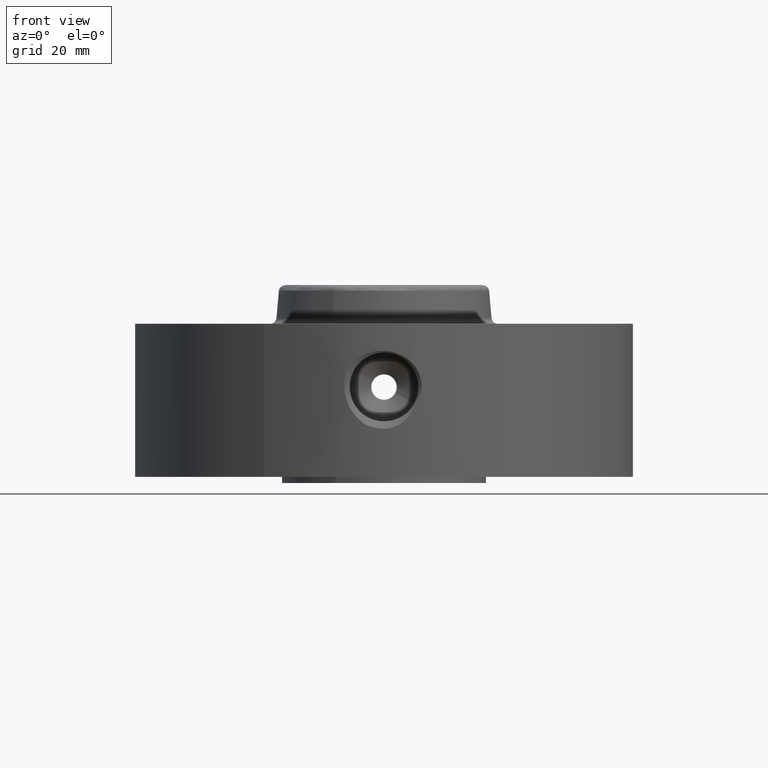
[diagram: clean part render]
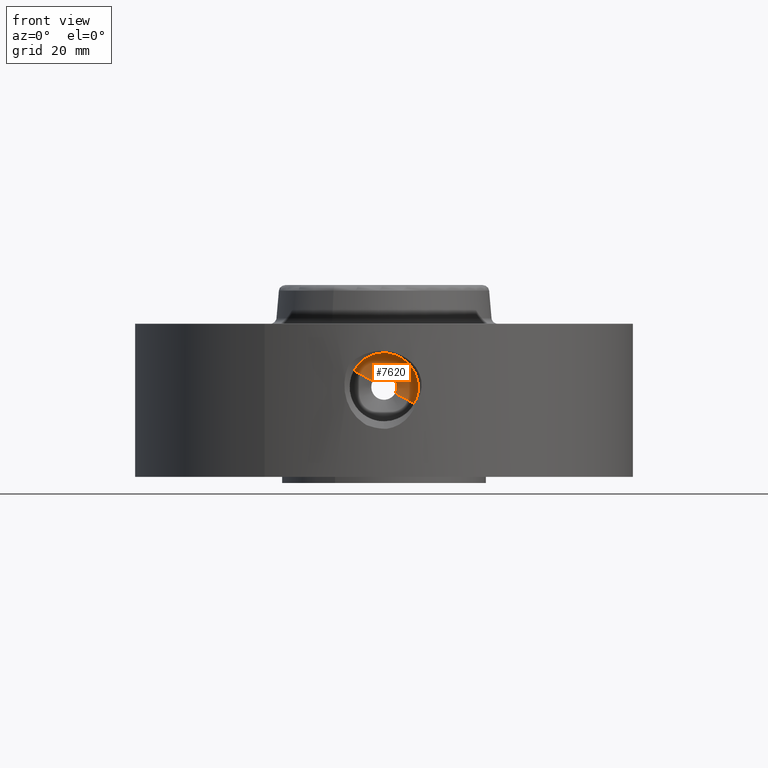
[diagram: same view with one face highlighted and labeled with its STEP entity id]
A machine part, front view. The second image highlights one B-rep face of the part: STEP entity #7620.
In plain terms, the highlighted conical surface has half-angle 60 deg.
Its self-contained STEP definition (entity closure, byte-faithful):
#4073=AXIS2_PLACEMENT_3D('Circle Axis2P3D',#4071,#4072,$) ;
#7593=AXIS2_PLACEMENT_3D('Cone Axis2P3D',#7590,#7591,#7592) ;
#7604=AXIS2_PLACEMENT_3D('Circle Axis2P3D',#7602,#7603,$) ;
#4068=CARTESIAN_POINT('Vertex',(0.109697820237,-1.44321662097,0.880071807678)) ;
#4071=CARTESIAN_POINT('Axis2P3D Location',(-3.76376332916E-016,-1.44321662097,0.940000000004)) ;
#4075=CARTESIAN_POINT('Vertex',(-0.109697820237,-1.44321662097,0.99992819233)) ;
#7590=CARTESIAN_POINT('Axis2P3D Location',(-3.76376332916E-016,-1.44321662097,0.940000000004)) ;
#7595=CARTESIAN_POINT('Line Origine',(0.202254259083,-1.50410831049,0.829507994685)) ;
#7599=CARTESIAN_POINT('Vertex',(0.29481069793,-1.56500000001,0.778944181692)) ;
#7602=CARTESIAN_POINT('Axis2P3D Location',(-3.98747576714E-016,-1.56500000001,0.940000000004)) ;
#7606=CARTESIAN_POINT('Vertex',(-0.29481069793,-1.56500000001,1.10105581832)) ;
#7609=CARTESIAN_POINT('Line Origine',(-0.202254259083,-1.50410831049,1.05049200532)) ;
#4072=DIRECTION('Axis2P3D Direction',(7.2321661367E-018,0.0393700787402,0.)) ;
#7591=DIRECTION('Axis2P3D Direction',(-7.2321661367E-018,-0.0393700787402,0.)) ;
#7592=DIRECTION('Axis2P3D XDirection',(-0.0345504945626,4.23385151202E-018,0.0188750212049)) ;
#7596=DIRECTION('Vector Direction',(0.0299216060045,-0.0196850393701,-0.0163462478604)) ;
#7603=DIRECTION('Axis2P3D Direction',(-7.2321661367E-018,-0.0393700787402,0.)) ;
#7610=DIRECTION('Vector Direction',(-0.0299216060045,-0.0196850393701,0.0163462478604)) ;
#7597=VECTOR('Line Direction',#7596,0.0393700787402) ;
#7611=VECTOR('Line Direction',#7610,0.0393700787402) ;
#7615=ORIENTED_EDGE('',*,*,#7601,.T.) ;
#7616=ORIENTED_EDGE('',*,*,#7608,.F.) ;
#7617=ORIENTED_EDGE('',*,*,#7613,.F.) ;
#7618=ORIENTED_EDGE('',*,*,#4077,.T.) ;
#7620=ADVANCED_FACE('PartBody',(#7619),#7594,.F.) ;
#4074=CIRCLE('generated circle',#4073,0.125000000001) ;
#7605=CIRCLE('generated circle',#7604,0.335935000001) ;
#7594=CONICAL_SURFACE('Cone',#7593,0.125,1.0471975512) ;
#4077=EDGE_CURVE('',#4076,#4069,#4074,.T.) ;
#7601=EDGE_CURVE('',#4069,#7600,#7598,.T.) ;
#7608=EDGE_CURVE('',#7607,#7600,#7605,.F.) ;
#7613=EDGE_CURVE('',#4076,#7607,#7612,.T.) ;
#7614=EDGE_LOOP('',(#7615,#7616,#7617,#7618)) ;
#7619=FACE_OUTER_BOUND('',#7614,.T.) ;
#7598=LINE('Line',#7595,#7597) ;
#7612=LINE('Line',#7609,#7611) ;
#4069=VERTEX_POINT('',#4068) ;
#4076=VERTEX_POINT('',#4075) ;
#7600=VERTEX_POINT('',#7599) ;
#7607=VERTEX_POINT('',#7606) ;